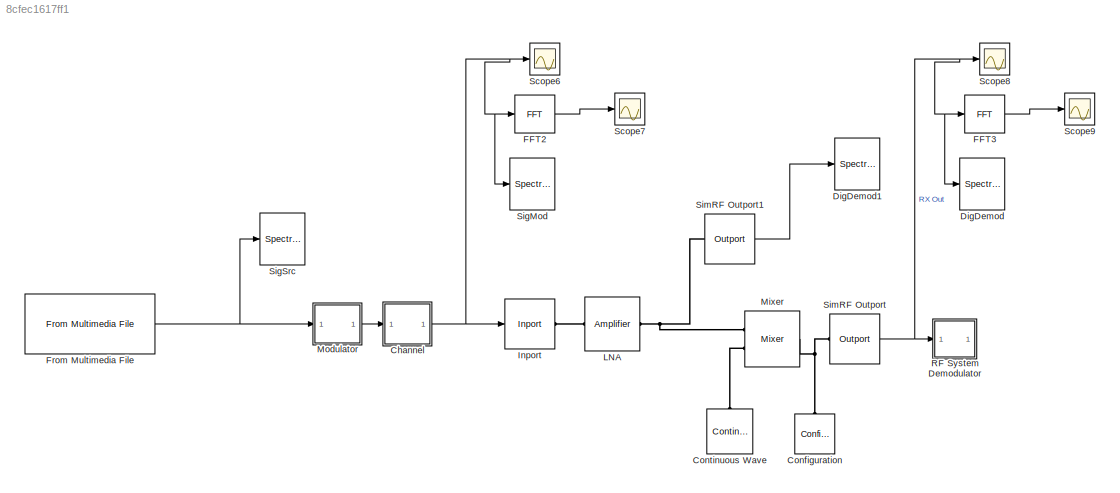
MODEL slx_8cfec1617ff1
KIND model
CONFIG AbsTol = auto
CONFIG FixedStep = auto
CONFIG MaxStep = auto
CONFIG MinStep = auto
CONFIG RelTol = 1e-3
CONFIG SampleTimeConstraint = Unconstrained
CONFIG Solver = VariableStepAuto
CONFIG SolverMode = Auto
CONFIG SolverName = VariableStepAuto
CONFIG StartTime = 0.0
CONFIG StopTime = 10.0
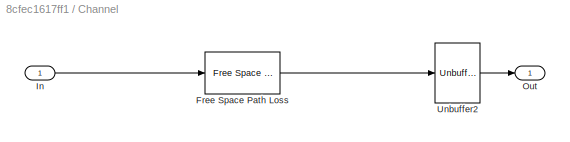
BLOCK [SubSystem] Channel
  Ports = [1, 1]
  RequestExecContextInheritance = off
  Variant = off
BLOCK [Reference] Channel/Free Space Path Loss  REF=commrflib2/Free Space
Path Loss
  Ports = [1, 1]
  SourceBlock = commrflib2/Free Space\nPath Loss
  SourceType = Free Space Path Loss
BLOCK [Inport] Channel/In
  IconDisplay = Port number
BLOCK [Outport] Channel/Out
  IconDisplay = Port number
BLOCK [Unbuffer] Channel/Unbuffer2
  Ports = [1, 1]
  SampleBasedProcessing = Same as frame based
BLOCK [Reference] Configuration  REF=simrfV2util1/Configuration
  Ports = [0, 0, 0, 0, 0, 1]
  SourceBlock = simrfV2util1/Configuration
  SourceType = Configuration
BLOCK [Reference] Continuous Wave  REF=simrfV2sources1/Continuous
Wave
  Ports = [0, 0, 0, 0, 0, 1]
  SourceBlock = simrfV2sources1/Continuous\nWave
  SourceType = CW Source
BLOCK [SpectrumAnalyzer] DigDemod
  Ports = [1]
  ScopeSpecificationString = spbscopes.SpectrumAnalyzerBlockCfg('CurrentConfiguration', extmgr.ConfigurationSet(extmgr.Configuration('Core','General UI',true),extmgr.Configuration('Core','Source UI',true),extmgr.Configuration('Sources','WiredSimulink',true),extmgr.Configuration('Visuals','Spectrum',true,'AxesProperties',struct('Color',[0 0 0],'XColor',[0.686274509803922 0.686274509803922 0.686274509803922],'YColor',[0.6862745...<+1164ch>
BLOCK [SpectrumAnalyzer] DigDemod1
  Ports = [1]
  ScopeSpecificationString = spbscopes.SpectrumAnalyzerBlockCfg('CurrentConfiguration', extmgr.ConfigurationSet(extmgr.Configuration('Core','General UI',true),extmgr.Configuration('Core','Source UI',true),extmgr.Configuration('Sources','WiredSimulink',true),extmgr.Configuration('Visuals','Spectrum',true,'AxesProperties',struct('Color',[0 0 0],'XColor',[0.686274509803922 0.686274509803922 0.686274509803922],'YColor',[0.6862745...<+1164ch>
BLOCK [Reference] FFT2  REF=dspxfrm3/FFT
  Ports = [1, 1]
  SourceBlock = dspxfrm3/FFT
  SourceType = FFT
BLOCK [Reference] FFT3  REF=dspxfrm3/FFT
  Ports = [1, 1]
  SourceBlock = dspxfrm3/FFT
  SourceType = FFT
BLOCK [Reference] From Multimedia File  REF=dspvision/From Multimedia File
  Ports = [0, 1]
  SourceBlock = dspvision/From Multimedia File
  SourceType = From Multimedia File
BLOCK [Reference] Inport  REF=simrfV2util1/Inport
  Ports = [1, 0, 0, 0, 0, 0, 1]
  SourceBlock = simrfV2util1/Inport
  SourceType = Inport
BLOCK [Reference] LNA  REF=simrfV2elements/Amplifier
  Ports = [0, 0, 0, 0, 0, 1, 1]
  SourceBlock = simrfV2elements/Amplifier
  SourceType = Amplifier
BLOCK [Reference] Mixer  REF=simrfV2elements/Mixer
  Ports = [0, 0, 0, 0, 0, 2, 1]
  SourceBlock = simrfV2elements/Mixer
  SourceType = Mixer
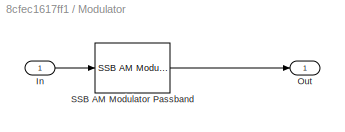
BLOCK [SubSystem] Modulator
  Ports = [1, 1]
  RequestExecContextInheritance = off
  Variant = off
BLOCK [Inport] Modulator/In
  IconDisplay = Port number
BLOCK [Outport] Modulator/Out
  IconDisplay = Port number
BLOCK [Reference] Modulator/SSB AM Modulator Passband  REF=commanapbnd3/SSB AM
Modulator
Passband
  Ports = [1, 1]
  SourceBlock = commanapbnd3/SSB AM\nModulator\nPassband
  SourceType = SSB AM Modulator Passband
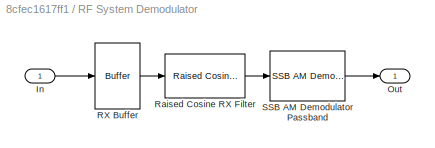
BLOCK [SubSystem] RF System Demodulator
  Ports = [1, 1]
  RequestExecContextInheritance = off
  Variant = off
BLOCK [Inport] RF System Demodulator/In
  IconDisplay = Port number
BLOCK [Outport] RF System Demodulator/Out
  IconDisplay = Port number
BLOCK [Buffer] RF System Demodulator/RX Buffer
  N = SF_PSF_SampPerSym*SF_Frame
  TreatMby1Signals = One channel
BLOCK [Reference] RF System Demodulator/Raised Cosine RX Filter  REF=commfilt2/Raised Cosine
Receive Filter
  Ports = [1, 1]
  SourceBlock = commfilt2/Raised Cosine\nReceive Filter
  SourceType = Raised Cosine Receive Filter
  UserDataPersistent = on
BLOCK [Reference] RF System Demodulator/SSB AM Demodulator Passband  REF=commanapbnd3/SSB AM
Demodulator
Passband
  Ports = [1, 1]
  SourceBlock = commanapbnd3/SSB AM\nDemodulator\nPassband
  SourceType = SSB AM Demodulator Passband
BLOCK [Scope] Scope6
  Ports = [1]
  ScopeSpecificationString = Simulink.scopes.TimeScopeBlockCfg('CurrentConfiguration', extmgr.ConfigurationSet(extmgr.Configuration('Core','General UI',true),extmgr.Configuration('Core','Source UI',true),extmgr.Configuration('Sources','WiredSimulink',true,'DataLoggingVariableName','ScopeData3'),extmgr.Configuration('Visuals','Time Domain',true,'SerializedDisplays',{struct('MinYLimReal','0.05727','MaxYLimReal','2.20552','YLabe...<+1413ch>
BLOCK [Scope] Scope7
  Ports = [1]
  ScopeSpecificationString = Simulink.scopes.TimeScopeBlockCfg('CurrentConfiguration', extmgr.ConfigurationSet(extmgr.Configuration('Core','General UI',true),extmgr.Configuration('Core','Source UI',true),extmgr.Configuration('Sources','WiredSimulink',true,'DataLoggingVariableName','ScopeData4'),extmgr.Configuration('Visuals','Time Domain',true,'SerializedDisplays',{struct('MinYLimReal','-0.24884','MaxYLimReal','2.23953','YLab...<+1410ch>
BLOCK [Scope] Scope8
  Ports = [1]
  ScopeSpecificationString = Simulink.scopes.TimeScopeBlockCfg('CurrentConfiguration', extmgr.ConfigurationSet(extmgr.Configuration('Core','General UI',true),extmgr.Configuration('Core','Source UI',true),extmgr.Configuration('Sources','WiredSimulink',true,'DataLoggingVariableName','ScopeData5'),extmgr.Configuration('Visuals','Time Domain',true,'SerializedDisplays',{struct('MinYLimReal','0.05727','MaxYLimReal','2.20552','YLabe...<+1413ch>
BLOCK [Scope] Scope9
  Ports = [1]
  ScopeSpecificationString = Simulink.scopes.TimeScopeBlockCfg('CurrentConfiguration', extmgr.ConfigurationSet(extmgr.Configuration('Core','General UI',true),extmgr.Configuration('Core','Source UI',true),extmgr.Configuration('Sources','WiredSimulink',true,'DataLoggingVariableName','ScopeData6'),extmgr.Configuration('Visuals','Time Domain',true,'SerializedDisplays',{struct('MinYLimReal','-0.24884','MaxYLimReal','2.23953','YLab...<+1410ch>
BLOCK [SpectrumAnalyzer] SigMod
  Ports = [1]
  ScopeSpecificationString = spbscopes.SpectrumAnalyzerBlockCfg('CurrentConfiguration', extmgr.ConfigurationSet(extmgr.Configuration('Core','General UI',true),extmgr.Configuration('Core','Source UI',true),extmgr.Configuration('Sources','WiredSimulink',true),extmgr.Configuration('Visuals','Spectrum',true,'AxesProperties',struct('Color',[0 0 0],'XColor',[0.686274509803922 0.686274509803922 0.686274509803922],'YColor',[0.6862745...<+1156ch>
BLOCK [SpectrumAnalyzer] SigSrc
  Ports = [1]
  ScopeSpecificationString = spbscopes.SpectrumAnalyzerBlockCfg('CurrentConfiguration', extmgr.ConfigurationSet(extmgr.Configuration('Core','General UI',true),extmgr.Configuration('Core','Source UI',true),extmgr.Configuration('Sources','WiredSimulink',true),extmgr.Configuration('Visuals','Spectrum',true,'AxesProperties',struct('Color',[0 0 0],'XColor',[0.686274509803922 0.686274509803922 0.686274509803922],'YColor',[0.6862745...<+1151ch>
BLOCK [Reference] SimRF Outport  REF=simrfV2util1/Outport
  Ports = [0, 1, 0, 0, 0, 1]
  SourceBlock = simrfV2util1/Outport
  SourceType = Outport
BLOCK [Reference] SimRF Outport1  REF=simrfV2util1/Outport
  Ports = [0, 1, 0, 0, 0, 1]
  SourceBlock = simrfV2util1/Outport
  SourceType = Outport
LINE Channel/Free Space Path Loss:1 -> Channel/Unbuffer2:1
LINE Channel/In:1 -> Channel/Free Space Path Loss:1
LINE Channel/Unbuffer2:1 -> Channel/Out:1
NET Channel:1 -> FFT2:1, Inport:1, Scope6:1, SigMod:1
LINE FFT2:1 -> Scope7:1
LINE FFT3:1 -> Scope9:1
NET From Multimedia File:1 -> Modulator:1, SigSrc:1
LINE Modulator/In:1 -> Modulator/SSB AM Modulator Passband:1
LINE Modulator/SSB AM Modulator Passband:1 -> Modulator/Out:1
LINE Modulator:1 -> Channel:1
LINE RF System Demodulator/In:1 -> RF System Demodulator/RX Buffer:1
LINE RF System Demodulator/RX Buffer:1 -> RF System Demodulator/Raised Cosine RX Filter:1
LINE RF System Demodulator/Raised Cosine RX Filter:1 -> RF System Demodulator/SSB AM Demodulator Passband:1
LINE RF System Demodulator/SSB AM Demodulator Passband:1 -> RF System Demodulator/Out:1
LINE SimRF Outport1:1 -> DigDemod1:1
NET SimRF Outport:1 -> DigDemod:1, FFT3:1, RF System Demodulator:1, Scope8:1
PNET net1: Configuration:LConn1 -- Mixer:RConn1 -- SimRF Outport:LConn1
PLINE Continuous Wave:LConn1 -- Mixer:LConn2
PLINE Inport:RConn1 -- LNA:LConn1
PNET net2: LNA:RConn1 -- Mixer:LConn1 -- SimRF Outport1:LConn1
note: NET lines group one-source signal fan-out (src -> all destinations, sorted); 1:1 wires keep LINE; PNET lines group multi-terminal physical nets as a canonical sorted terminal list (undirected conserving connections); 2-terminal nets keep the pairwise PLINE form
